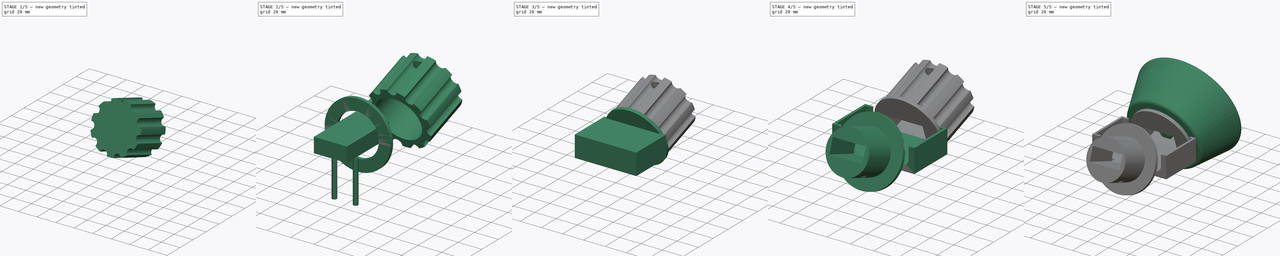
[diagram: build sequence overview — one tinted view per stage of 5, left to right]
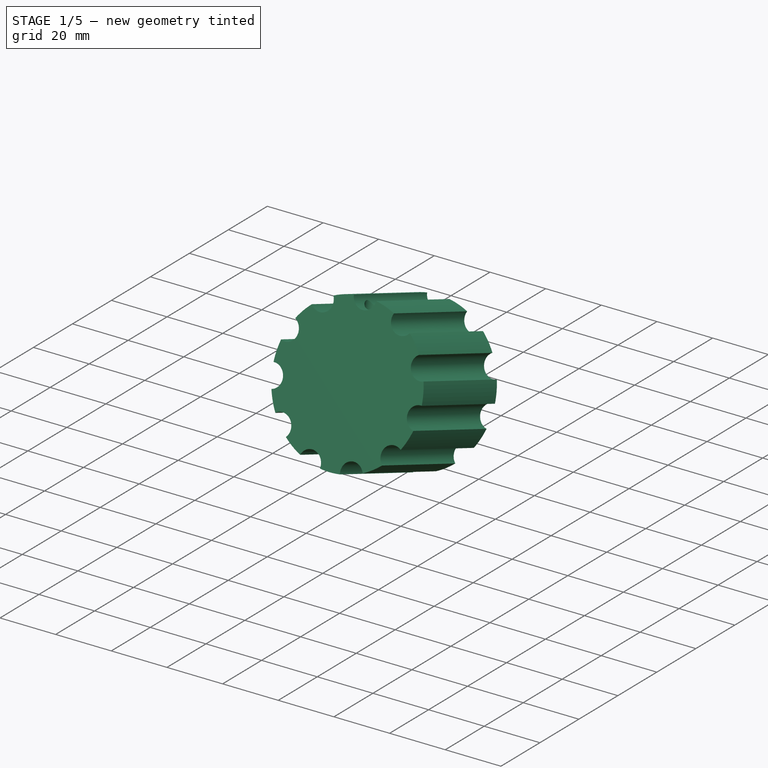
[diagram: stage 1 of 5 — iso view after this stage's code; geometry added in this stage tinted green]
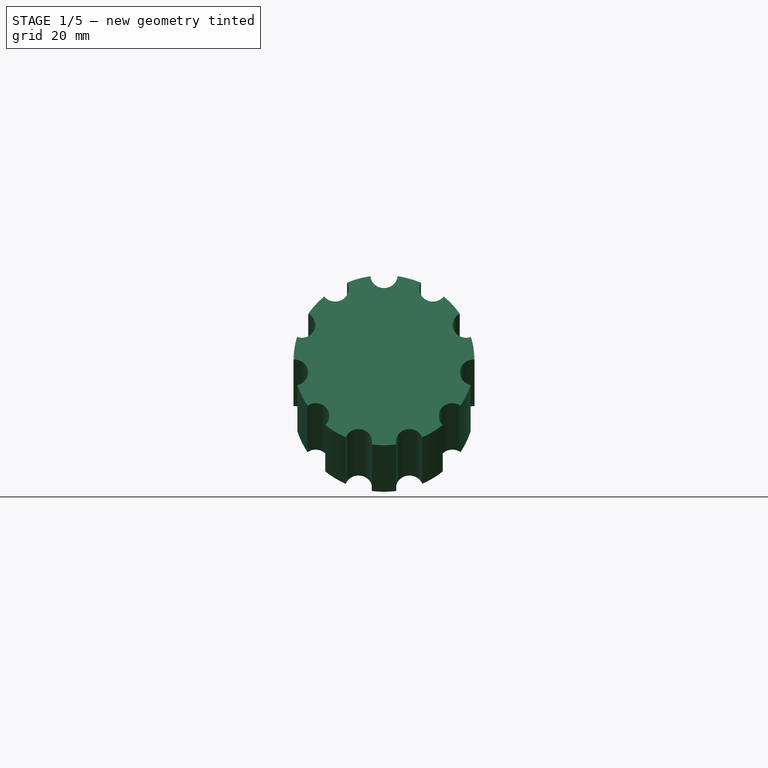
[diagram: stage 1 of 5 — front view after this stage's code; geometry added in this stage tinted green]
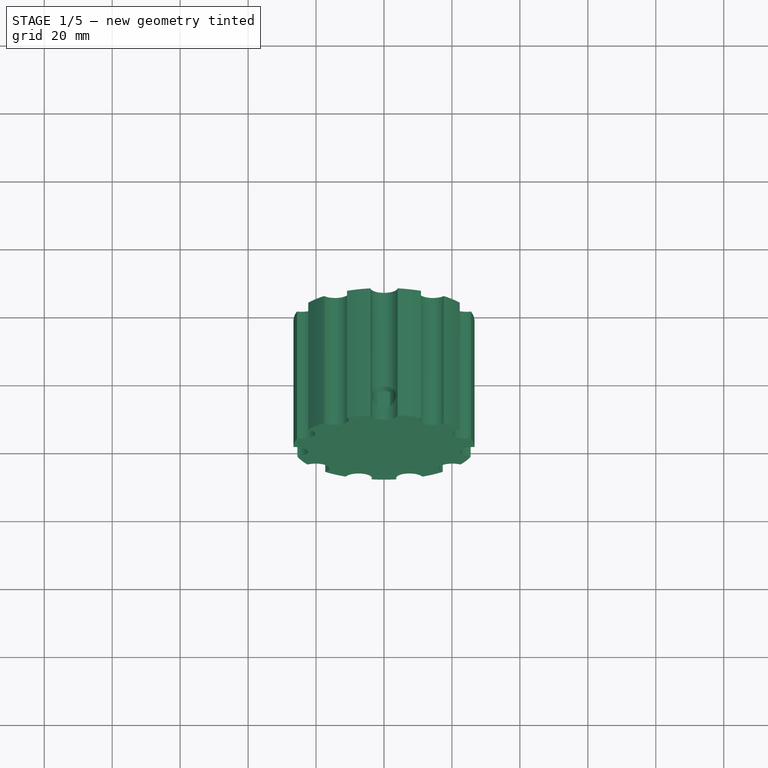
[diagram: stage 1 of 5 — top view after this stage's code; geometry added in this stage tinted green]
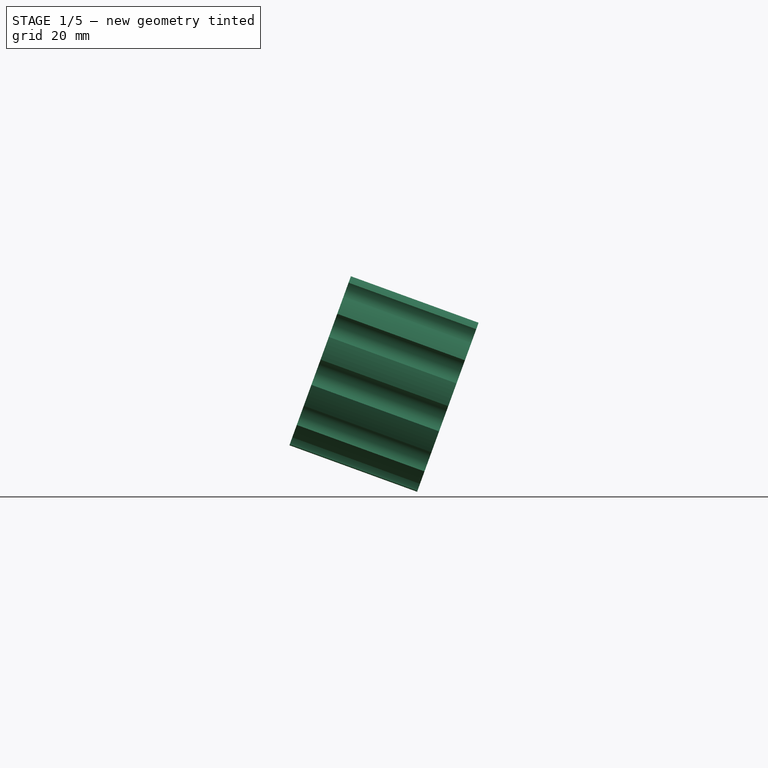
[diagram: stage 1 of 5 — right view after this stage's code; geometry added in this stage tinted green]
FCSTD DOCUMENT  (FreeCAD 0.16R6639 (Git))
Label: bilocitractor
License: All rights reserved
LicenseURL: http://en.wikipedia.org/wiki/All_rights_reserved
objects: Part::Cylinder×10, Part::MultiFuse×9, Part::Cut×9, Part::Box×7, Part::Mirroring×6, Part::Fillet×4, Part::FeaturePython×2, Part::Feature×1, Sketcher::SketchObject×1, PartDesign::Pad×1, Part::Cone×1
note: 52 computed .brp shape members not serialized (recipe doc carries the construction recipe); baked Part::Feature solids carry a one-line shape summary decoded from their .brp

FEATURE [Part::Feature] Fillet005  label="pololy bracket001"
  Placement = pos=(0,9.39693,-3.4202) rot=(-1,0,0;0.349066rad)
  shape: bbox 26.6 x 20.19 x 16.72 mm, 26 faces (baked)
FEATURE [Part::Cylinder] Cylinder  label="Cilindro"
  Angle = 360
  Height = 40
  Placement = pos=(0,20,0) rot=(1,0,0;1.5708rad)
  Radius = 26.62
FEATURE [Sketcher::SketchObject] Sketch
  Placement = pos=(0,0,0) rot=(1,0,0;1.5708rad)
  sketch-geometry (23):
    g0: LineSegment [constr] StartX=20.1188 StartY=-17.433 StartZ=0 EndX=26.35 EndY=-3.78856 EndZ=0
    g1: LineSegment [constr] StartX=26.35 StartY=-3.78856 StartZ=0 EndX=24.2153 EndY=11.0588 EndZ=0
    g2: LineSegment [constr] StartX=24.2153 StartY=11.0588 StartZ=0 EndX=14.3924 EndY=22.395 EndZ=0
    g3: LineSegment [constr] StartX=14.3924 StartY=22.395 StartZ=0 EndX=0 EndY=26.621 EndZ=0
    g4: LineSegment [constr] StartX=0 StartY=26.621 StartZ=0 EndX=-14.3924 EndY=22.395 EndZ=0
    g5: LineSegment [constr] StartX=-14.3924 StartY=22.395 StartZ=0 EndX=-24.2153 EndY=11.0588 EndZ=0
    g6: LineSegment [constr] StartX=-24.2153 StartY=11.0588 StartZ=0 EndX=-26.35 EndY=-3.78856 EndZ=0
    g7: LineSegment [constr] StartX=-7.5 StartY=-25.5427 StartZ=0 EndX=7.5 EndY=-25.5427 EndZ=0
    g8: LineSegment [constr] StartX=7.5 StartY=-25.5427 StartZ=0 EndX=20.1188 EndY=-17.433 EndZ=0
    g9: Circle CenterX=0 CenterY=26.621 CenterZ=0 NormalX=0 NormalY=0 NormalZ=1 Radius=4
    g10: Circle CenterX=14.3924 CenterY=22.395 CenterZ=0 NormalX=0 NormalY=0 NormalZ=1 Radius=4
    g11: Circle CenterX=24.2153 CenterY=11.0588 CenterZ=0 NormalX=0 NormalY=0 NormalZ=1 Radius=4
    g12: Circle CenterX=26.35 CenterY=-3.78856 CenterZ=0 NormalX=0 NormalY=0 NormalZ=1 Radius=4
    g13: Circle CenterX=20.1188 CenterY=-17.433 CenterZ=0 NormalX=0 NormalY=0 NormalZ=1 Radius=4
    g14: Circle CenterX=7.5 CenterY=-25.5427 CenterZ=0 NormalX=0 NormalY=0 NormalZ=1 Radius=4
    g15: Circle CenterX=-7.5 CenterY=-25.5427 CenterZ=0 NormalX=0 NormalY=0 NormalZ=1 Radius=4
    g16: Circle CenterX=-26.35 CenterY=-3.78856 CenterZ=0 NormalX=0 NormalY=0 NormalZ=1 Radius=4
    g17: Circle CenterX=-24.2153 CenterY=11.0588 CenterZ=0 NormalX=0 NormalY=0 NormalZ=1 Radius=4
    g18: Circle CenterX=-14.3924 CenterY=22.395 CenterZ=0 NormalX=0 NormalY=0 NormalZ=1 Radius=4
    g19: LineSegment [constr] StartX=-26.35 StartY=-3.78856 StartZ=0 EndX=-20.1188 EndY=-17.433 EndZ=0
    g20: LineSegment [constr] StartX=-20.1188 StartY=-17.433 StartZ=0 EndX=-7.5 EndY=-25.5427 EndZ=0
    g21: Circle CenterX=-20.1188 CenterY=-17.433 CenterZ=0 NormalX=0 NormalY=0 NormalZ=1 Radius=4
    g22: Circle [constr] CenterX=0 CenterY=0 CenterZ=0 NormalX=0 NormalY=0 NormalZ=1 Radius=26.621
  constraints (51):
    c: Coincident(g0,g1)
    c: Coincident(g1,g2)
    c: Coincident(g2,g3)
    c: Coincident(g3,g4)
    c: Coincident(g4,g5)
    c: Coincident(g5,g6)
    c: Equal(g0,g1)
    c: Equal(g1,g2)
    c: Equal(g2,g3)
    c: Equal(g3,g4)
    c: Equal(g4,g5)
    c: Coincident(g8,g0)
    c: Coincident(g7,g8)
    c: Equal(g8,g0)
    c: Equal(g0,g7)
    c: Distance(g2) = 15
    c: PointOnObject(g3,g-2)
    c: Coincident(g9,g3)
    c: Coincident(g10,g2)
    c: Coincident(g11,g1)
    c: Coincident(g12,g0)
    c: Coincident(g14,g7)
    c: Coincident(g16,g6)
    c: Coincident(g17,g5)
    c: Coincident(g18,g4)
    c: Radius(g11) = 4
    c: Equal(g11, g12-g18) x7
    c: Equal(g11,g9)
    c: Equal(g11,g10)
    c: Coincident(g13,g0)
    c: Coincident(g6,g19)
    c: Coincident(g19,g20)
    c: Coincident(g20,g7)
    c: Coincident(g7,g15)
    c: Equal(g19,g20)
    c: Equal(g20,g7)
    c: Coincident(g21,g19)
    c: Equal(g21,g15)
    c: Coincident(g22,g-1)
    c: PointOnObject(g7,g22)
    c: PointOnObject(g19,g22)
    c: PointOnObject(g6,g22)
    c: PointOnObject(g5,g22)
    c: PointOnObject(g4,g22)
    c: PointOnObject(g3,g22)
    c: PointOnObject(g2,g22)
    c: PointOnObject(g1,g22)
    c: PointOnObject(g0,g22)
    c: PointOnObject(g0,g22)
    c: PointOnObject(g7,g22)
    c: Equal(g6,g5)
FEATURE [Part::Cylinder] Cylinder001  label="Cilindro001"
  Angle = 360
  Height = 30
  Placement = pos=(0,20,0) rot=(1,0,0;1.5708rad)
  Radius = 19
FEATURE [Part::Cut] Cut
  Base = -> Cylinder
  Tool = -> Cylinder001
FEATURE [PartDesign::Pad] Pad
  Length = 40
  Length2 = 100
  Midplane = true
  Placement = pos=(0,0,0) rot=(1,0,0;1.5708rad)
  Sketch = -> Sketch
  Type = 0
FEATURE [Part::Cut] Cut001
  Base = -> Cut
  Tool = -> Pad
FEATURE [Part::Cylinder] Cylinder002  label="Cilindro002"
  Angle = 360
  Height = 35
  Placement = pos=(0,-13,5) rot=(0,0,1;0rad)
  Radius = 3.5
FEATURE [Part::Cylinder] Cylinder003  label="Cilindro003"
  Angle = 360
  Height = 18
  Placement = pos=(0,0,0) rot=(1,0,0;1.5708rad)
  Radius = 1.7
FEATURE [Part::Cylinder] Cylinder004  label="Cilindro004"
  Angle = 360
  Height = 40
  Placement = pos=(0,-13,0) rot=(0,0,1;0rad)
  Radius = 1.5
FEATURE [Part::MultiFuse] Fusion001
  Shapes = -> [Cylinder004,Cylinder003,Cylinder002]
FEATURE [Part::Cut] Cut002
  Base = -> Cut001
  Placement = pos=(0,0,0) rot=(-1,0,0;0.349066rad)
  Tool = -> Fusion001
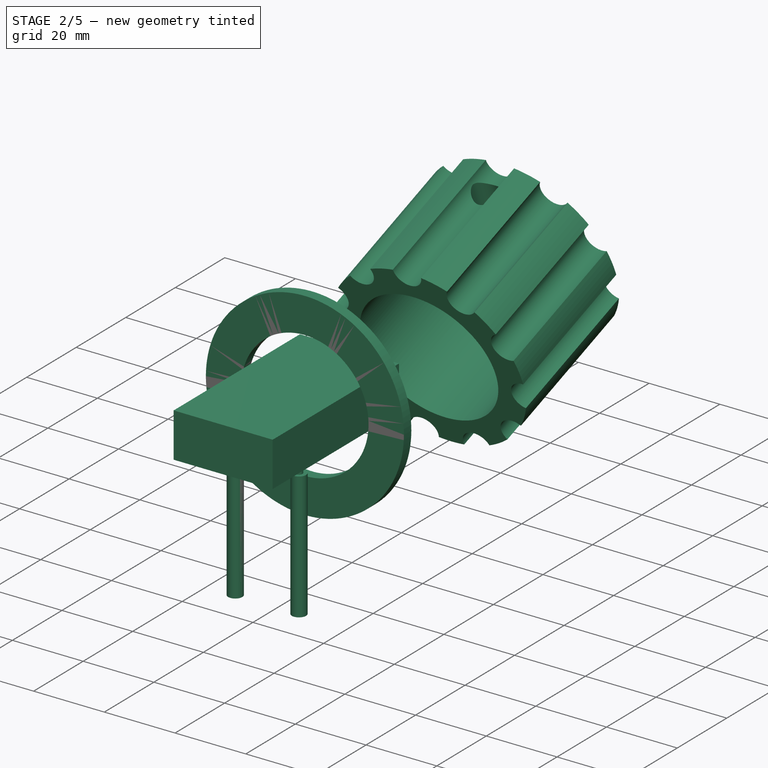
[diagram: stage 2 of 5 — iso view after this stage's code; geometry added in this stage tinted green]
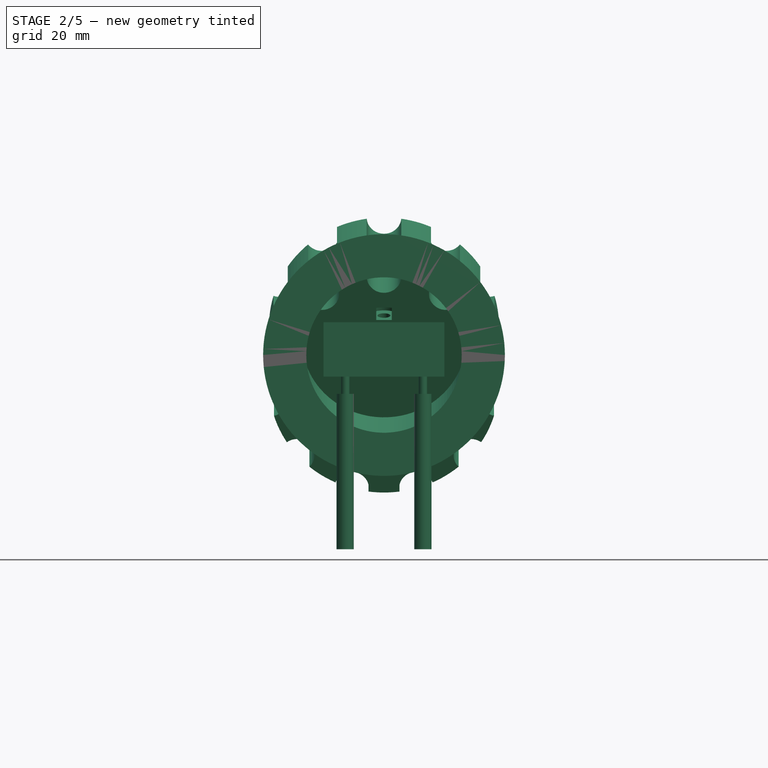
[diagram: stage 2 of 5 — front view after this stage's code; geometry added in this stage tinted green]
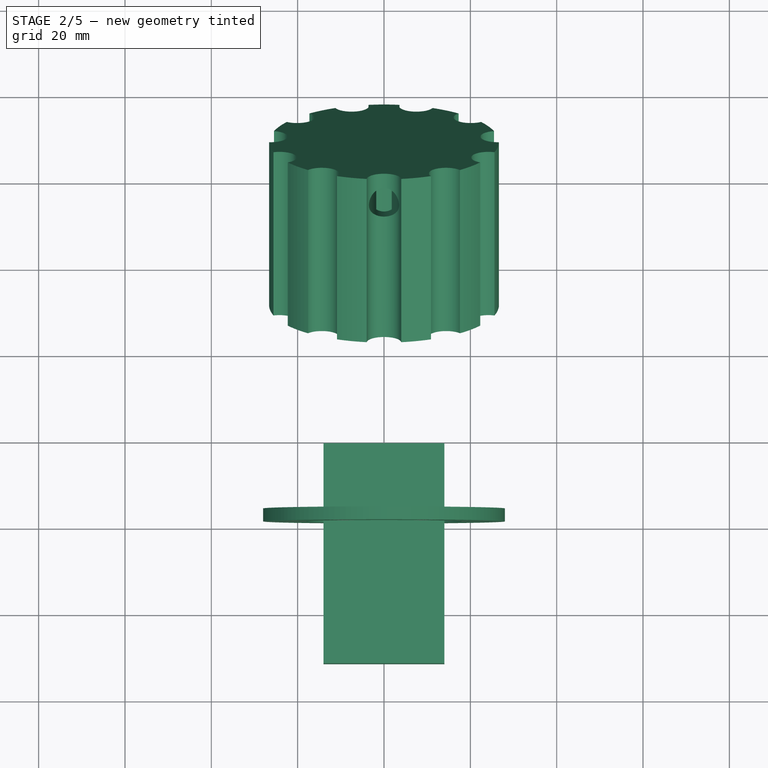
[diagram: stage 2 of 5 — top view after this stage's code; geometry added in this stage tinted green]
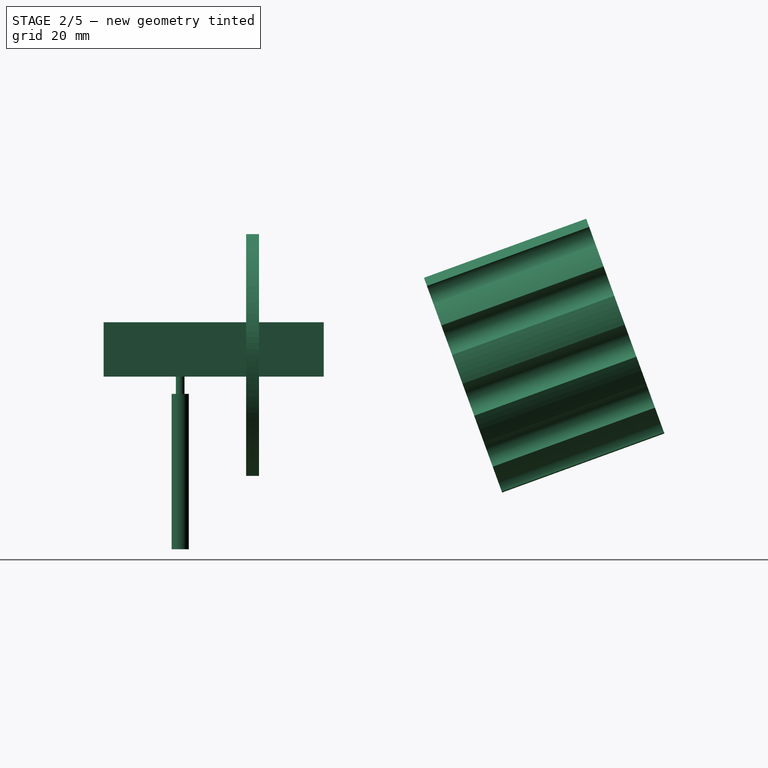
[diagram: stage 2 of 5 — right view after this stage's code; geometry added in this stage tinted green]
FEATURE [Part::Box] Box001  label="Cubo001"
  Height = 12.6
  Length = 28
  Placement = pos=(-14,-12,-5) rot=(0,0,1;0rad)
  Width = 51
FEATURE [Part::Cylinder] Cylinder006  label="Cilindro006"
  Angle = 360
  Height = 36
  Placement = pos=(9,5.75,-45) rot=(0,0,1;0rad)
  Radius = 2
FEATURE [Part::Cylinder] Cylinder007  label="Cilindro007"
  Angle = 360
  Height = 36
  Placement = pos=(9,5.75,-40) rot=(0,0,1;0rad)
  Radius = 1
FEATURE [Part::MultiFuse] Fusion003
  Shapes = -> [Cylinder006,Cylinder007]
FEATURE [Part::Mirroring] Part__Mirroring  label="Fusion003 (Mirror #1)"
  Base = (0,0,0)
  Normal = (1,0,0)
  Source = -> Fusion003
FEATURE [Part::MultiFuse] Fusion004
  Shapes = -> [Part__Mirroring,Fusion003]
FEATURE [Part::Cylinder] Cylinder008  label="Cilindro008"
  Angle = 360
  Height = 3
  Placement = pos=(0,24,0) rot=(1,0,0;1.5708rad)
  Radius = 18
FEATURE [Part::Cylinder] Cylinder009  label="Cilindro009"
  Angle = 360
  Height = 3
  Placement = pos=(0,24,0) rot=(1,0,0;1.5708rad)
  Radius = 28
FEATURE [Part::Cut] Cut005
  Base = -> Cylinder009
  Tool = -> Cylinder008
FEATURE [Part::Mirroring] Part__Mirroring008  label="Cut002 (Mirror #6)"
  Base = (0,45,0)
  Normal = (0,1,0)
  Source = -> Cut002
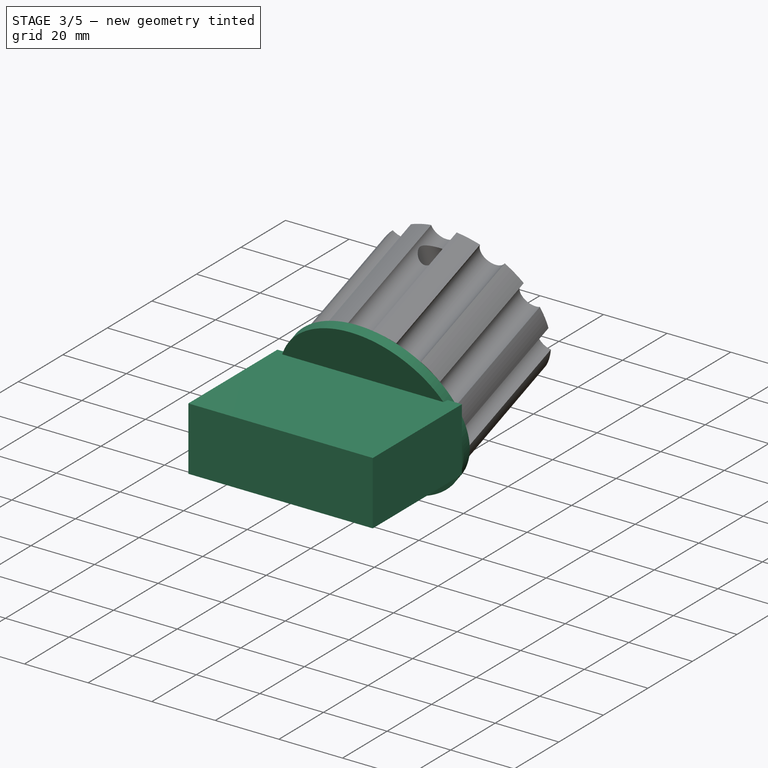
[diagram: stage 3 of 5 — iso view after this stage's code; geometry added in this stage tinted green]
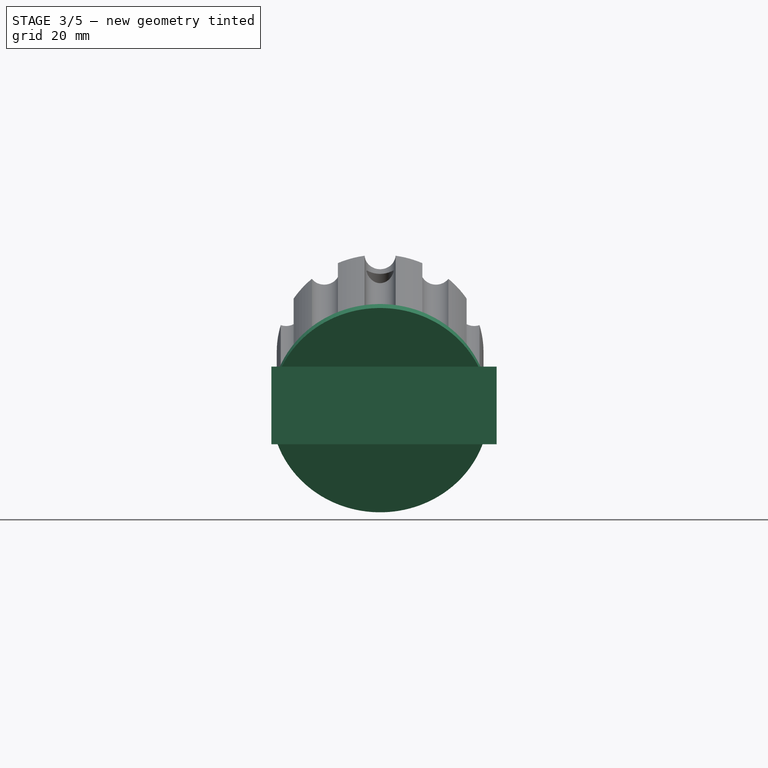
[diagram: stage 3 of 5 — front view after this stage's code; geometry added in this stage tinted green]
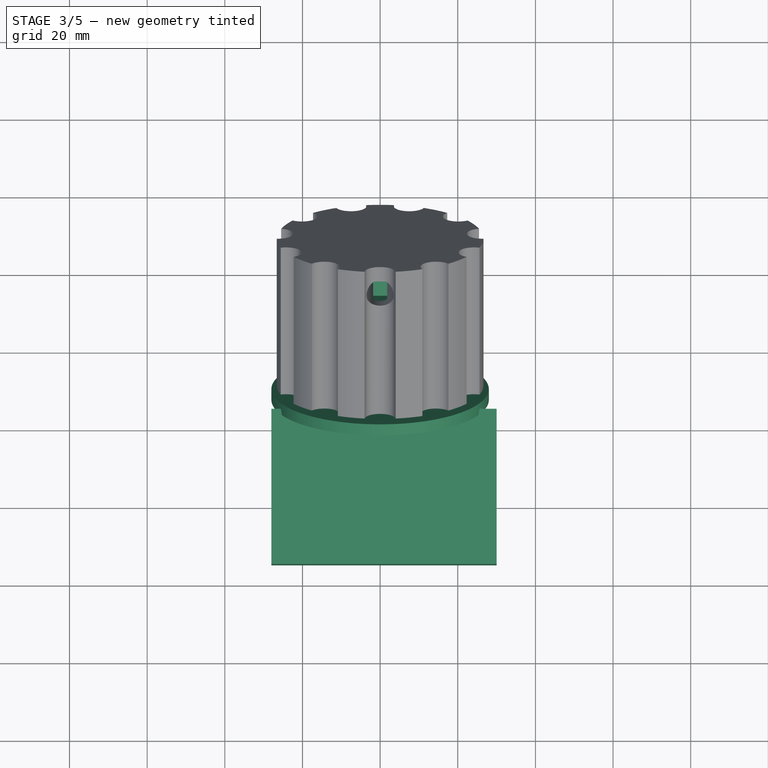
[diagram: stage 3 of 5 — top view after this stage's code; geometry added in this stage tinted green]
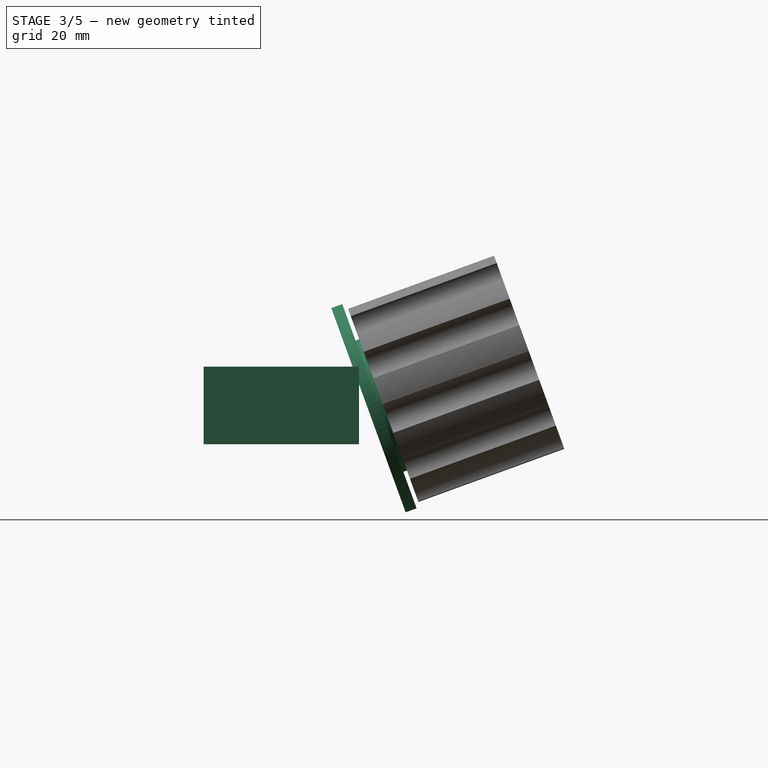
[diagram: stage 3 of 5 — right view after this stage's code; geometry added in this stage tinted green]
FEATURE [Part::Cylinder] Cylinder005  label="Cilindro005"
  Angle = 360
  Height = 31
  Placement = pos=(0,24,0) rot=(1,0,0;1.5708rad)
  Radius = 18
FEATURE [Part::Box] Box  label="Cubo"
  Height = 12
  Length = 16
  Placement = pos=(-8,-8,-5) rot=(0,0,1;0rad)
  Width = 26
FEATURE [Part::Fillet] Fillet006
  Base = -> Box
  Edges = 2 edges r=1: [Edge2,Edge6]
FEATURE [Part::MultiFuse] Fusion002
  Shapes = -> [Box001,Fillet006]
FEATURE [Part::Cut] Cut003
  Base = -> Cylinder005
  Tool = -> Fusion002
FEATURE [Part::Cut] Cut004
  Base = -> Cut003
  Tool = -> Fusion004
FEATURE [Part::MultiFuse] Fusion005
  Placement = pos=(0,0,0) rot=(-1,0,0;0.349066rad)
  Shapes = -> [Cut005,Cut004]
FEATURE [Part::Box] Box006  label="Cubo006"
  Height = 20
  Length = 58
  Placement = pos=(-28,25,-17) rot=(0,0,1;0rad)
  Width = 40
FEATURE [Part::Mirroring] Part__Mirroring004  label="Fusion005 (Mirror #4)"
  Base = (0,45,0)
  Normal = (0,1,0)
  Source = -> Fusion005
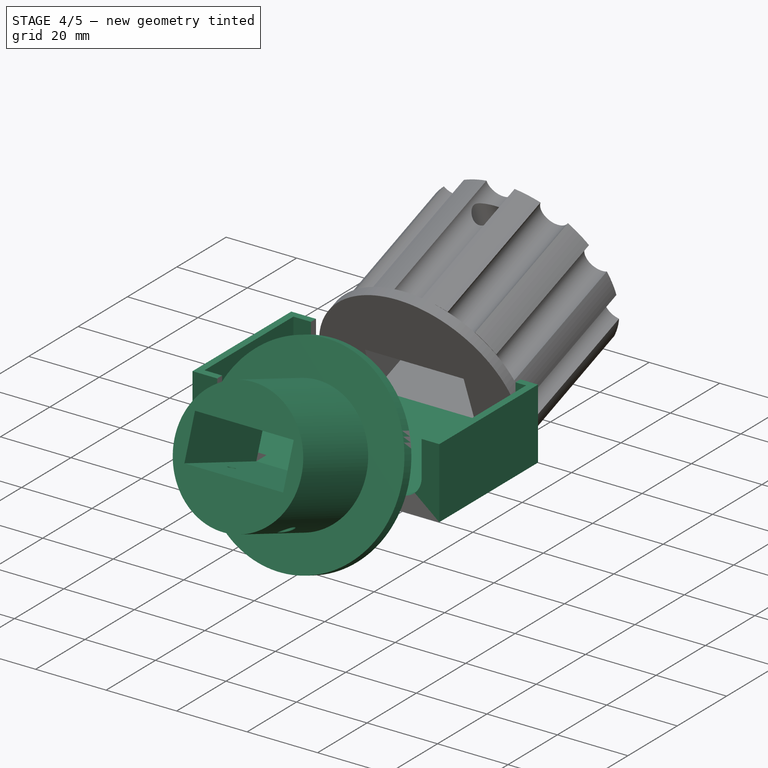
[diagram: stage 4 of 5 — iso view after this stage's code; geometry added in this stage tinted green]
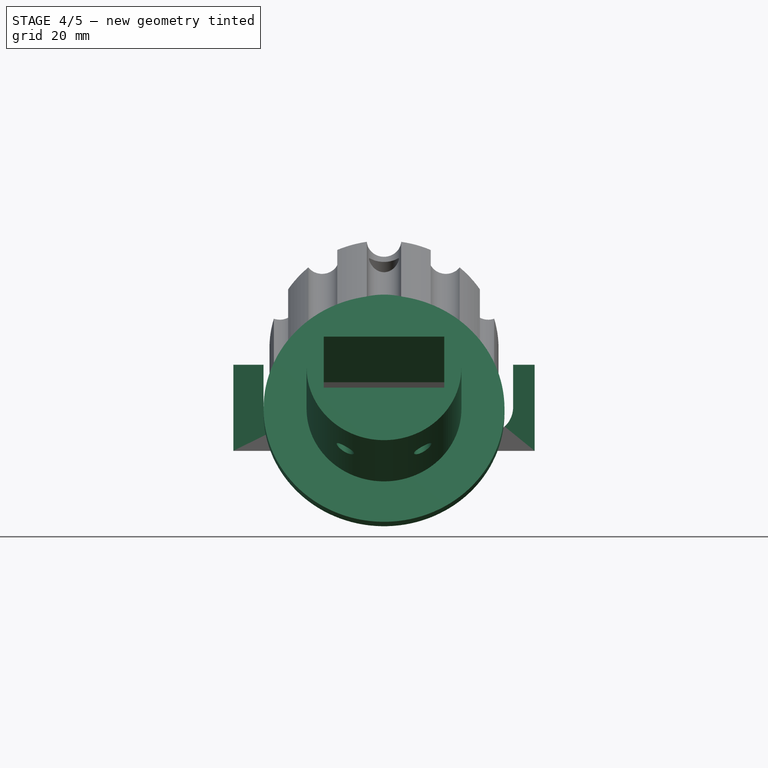
[diagram: stage 4 of 5 — front view after this stage's code; geometry added in this stage tinted green]
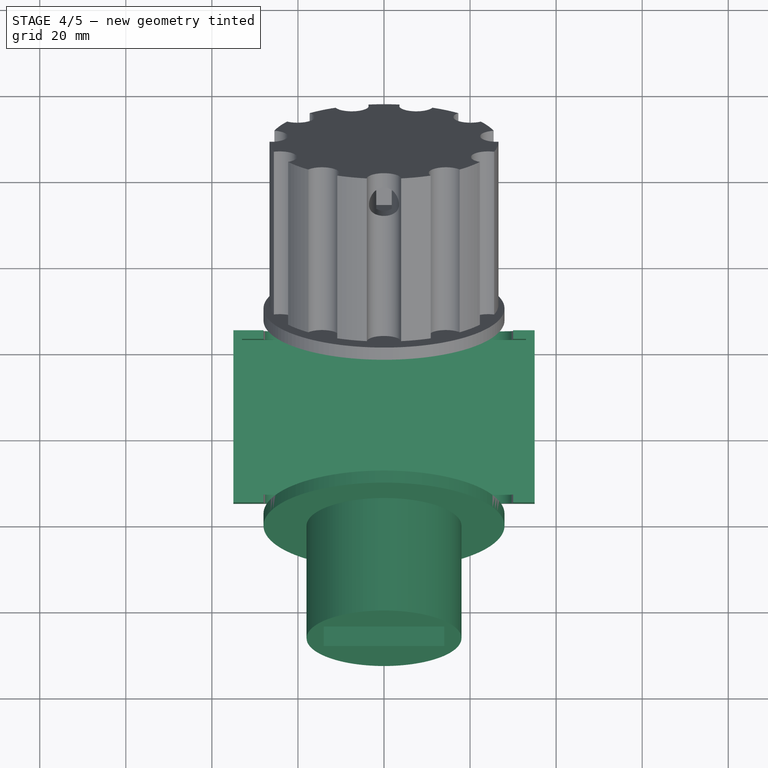
[diagram: stage 4 of 5 — top view after this stage's code; geometry added in this stage tinted green]
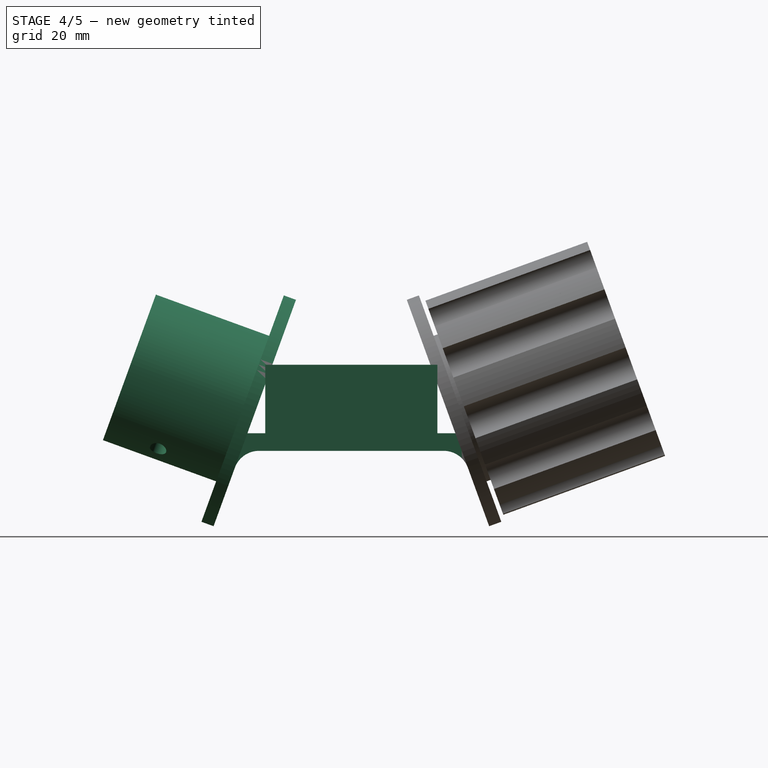
[diagram: stage 4 of 5 — right view after this stage's code; geometry added in this stage tinted green]
FEATURE [Part::Box] Box002  label="Cubo002"
  Height = 4.1
  Length = 28
  Placement = pos=(-14,16,-17) rot=(0,0,1;0rad)
  Width = 58
FEATURE [Part::Box] Box003  label="Cubo003"
  Height = 4.1
  Length = 70
  Placement = pos=(-35,25,-17) rot=(0,0,1;0rad)
  Width = 40
FEATURE [Part::Box] Box004  label="Cubo004"
  Height = 20
  Length = 70
  Placement = pos=(-35,25,-17) rot=(0,0,1;0rad)
  Width = 40
FEATURE [Part::Box] Box005  label="Cubo005"
  Height = 20
  Length = 66
  Placement = pos=(-33,27,-17) rot=(0,0,1;0rad)
  Width = 36
FEATURE [Part::MultiFuse] Fusion006
  Shapes = -> [Box006,Box005]
FEATURE [Part::Cut] Cut009
  Base = -> Box004
  Tool = -> Fusion006
FEATURE [Part::MultiFuse] Fusion007
  Shapes = -> [Box003,Cut009,Box002]
FEATURE [Part::MultiFuse] Fusion008
  Shapes = -> [Fusion005,Fusion007,Part__Mirroring004]
FEATURE [Part::Fillet] Fillet
  Base = -> Fusion008
  Edges = 2 edges r=6: [Edge6,Edge27]
FEATURE [Part::Fillet] Fillet008
  Base = -> Fillet
  Edges = 4 edges r=6: [Edge45,Edge49,Edge57,Edge61]
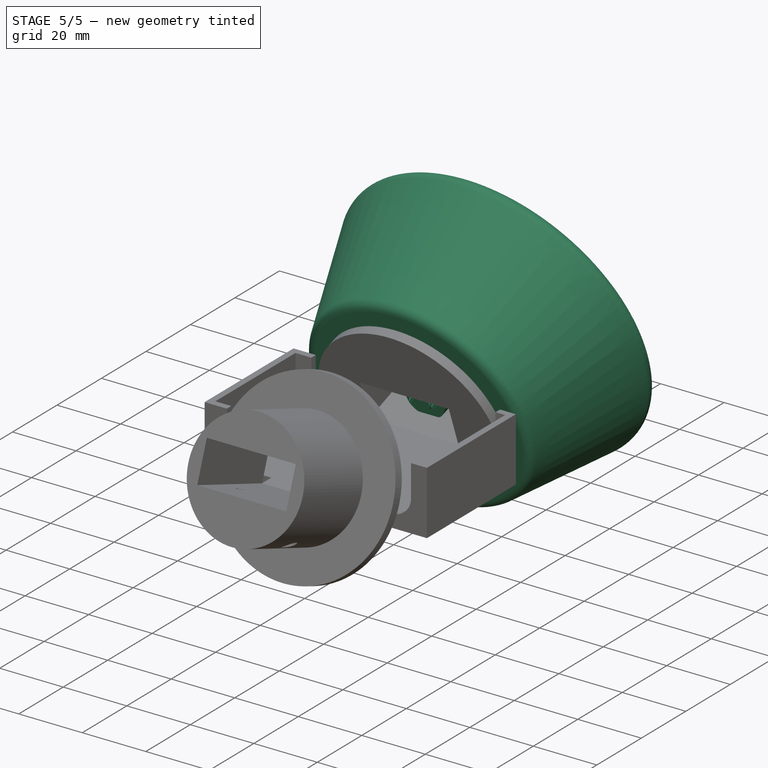
[diagram: stage 5 of 5 — iso view after this stage's code; geometry added in this stage tinted green]
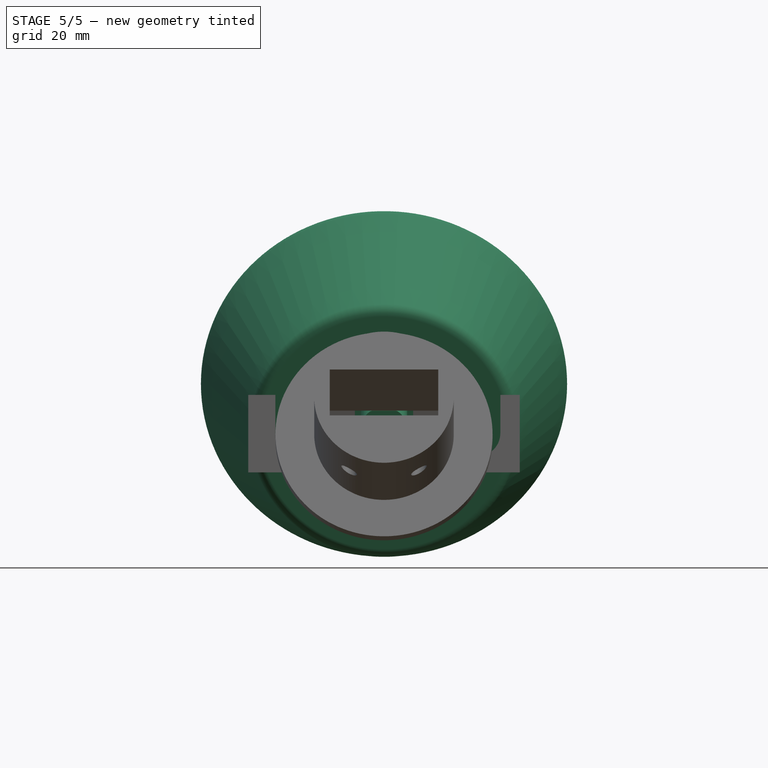
[diagram: stage 5 of 5 — front view after this stage's code; geometry added in this stage tinted green]
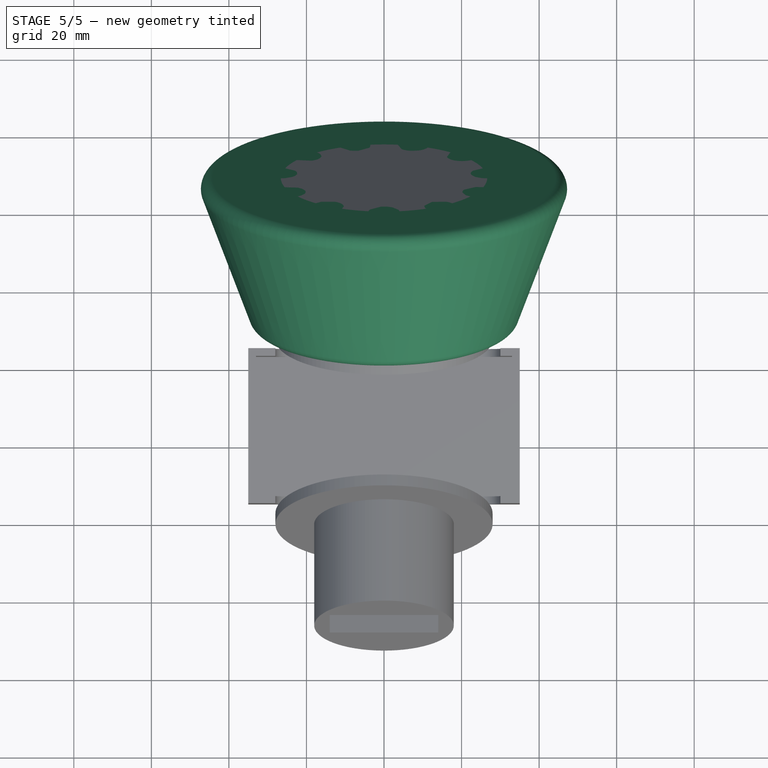
[diagram: stage 5 of 5 — top view after this stage's code; geometry added in this stage tinted green]
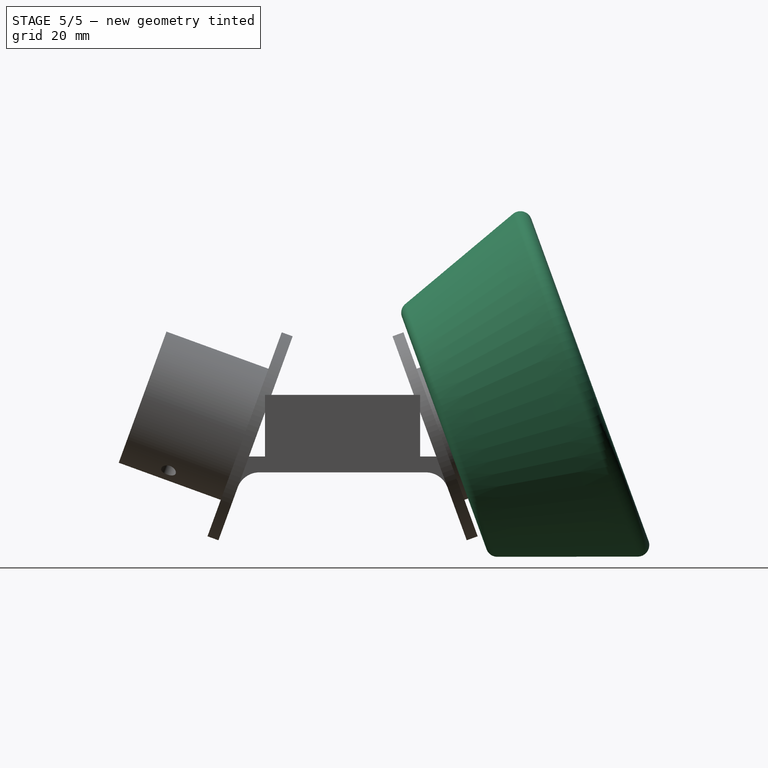
[diagram: stage 5 of 5 — right view after this stage's code; geometry added in this stage tinted green]
FEATURE [Part::MultiFuse] Fusion  label="pololo 250:003"
  Placement = pos=(0,8.92708,-3.24919) rot=(1,0,0;1.22173rad)
FEATURE [Part::FeaturePython] Clone  label="Clone of Pad"  # Draft clone (typed FeaturePython)
  Objects = -> [Pad]
  Placement = pos=(0,0,0) rot=(1,0,0;1.5708rad)
  Scale = (1,1,1)
FEATURE [Part::FeaturePython] Clone001  label="Clone of Cilindro"  # Draft clone (typed FeaturePython)
  Objects = -> [Cylinder]
  Placement = pos=(0,20,0) rot=(1,0,0;1.5708rad)
  Scale = (1,1,1)
FEATURE [Part::Cut] Cut007
  Base = -> Clone001
  Placement = pos=(0,0,0) rot=(-1,0,0;0.349066rad)
  Tool = -> Clone
FEATURE [Part::Cone] Cone  label="Cono"
  Angle = 360
  Height = 40
  Placement = pos=(0,18.7939,-6.8404) rot=(1,0,0;1.22173rad)
  Radius1 = 34
  Radius2 = 48.5
FEATURE [Part::Cut] Cut008
  Base = -> Cone
  Tool = -> Cut007
FEATURE [Part::Fillet] Fillet007
  Base = -> Cut008
  Edges = 2 edges r=3: [Edge1,Edge3]
FEATURE [Part::Mirroring] Part__Mirroring005  label="Fillet007 (Mirror #5)"
  Base = (0,45,0)
  Normal = (0,1,0)
  Source = -> Fillet007
FEATURE [Part::Mirroring] Part__Mirroring006  label="pololo 250:003 (Mirror #5)"
  Base = (0,45,0)
  Normal = (0,1,0)
  Source = -> Fusion
FEATURE [Part::Mirroring] Part__Mirroring007  label="pololy bracket001 (Mirror #6)"
  Base = (0,45,0)
  Normal = (0,1,0)
  Source = -> Fillet005
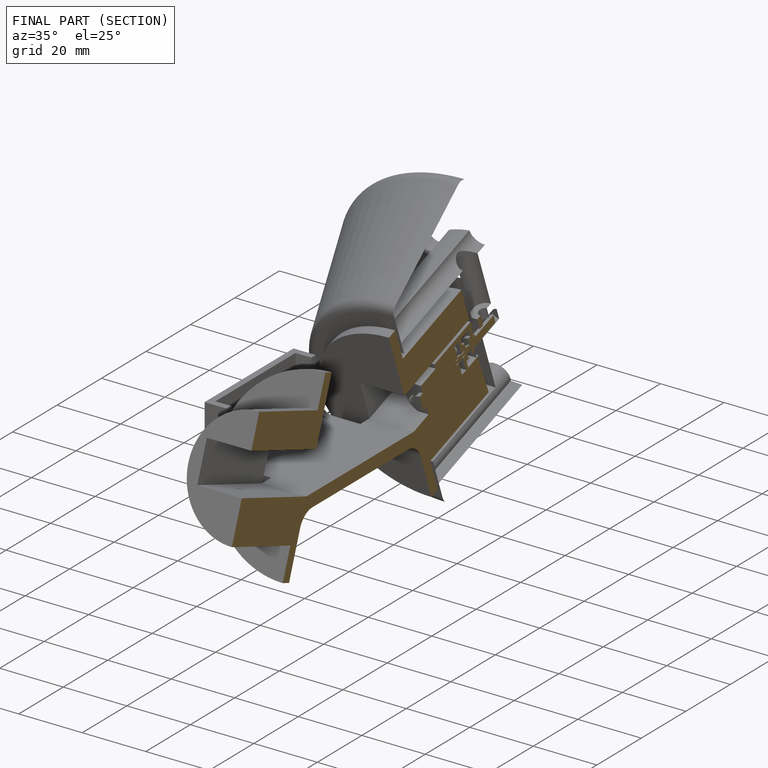
[diagram: finished part — half-section view (interior)]
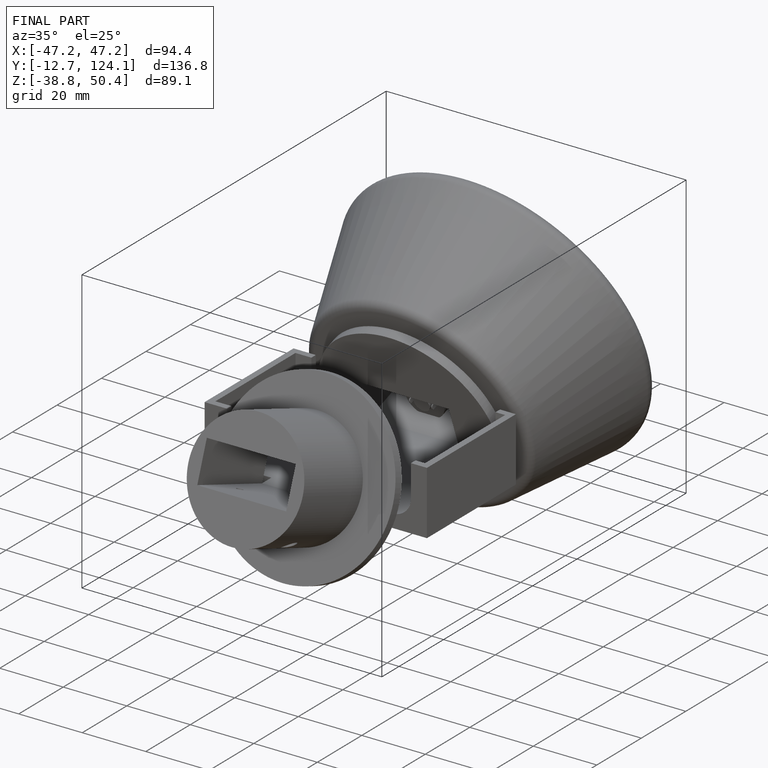
[diagram: finished part — iso view with bounding-box wireframe]
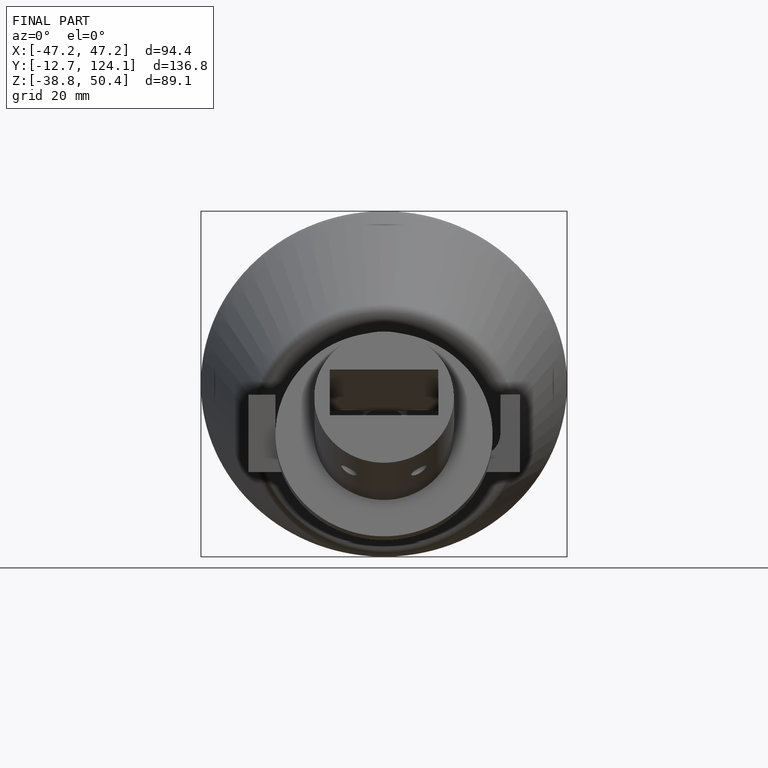
[diagram: finished part — front view with bounding-box wireframe]
